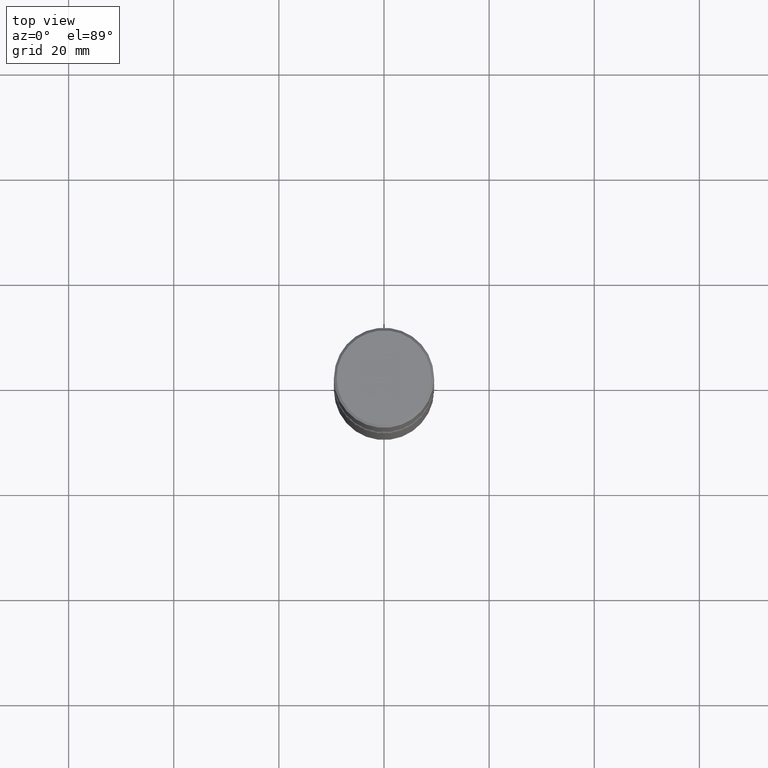
[diagram: clean part render]
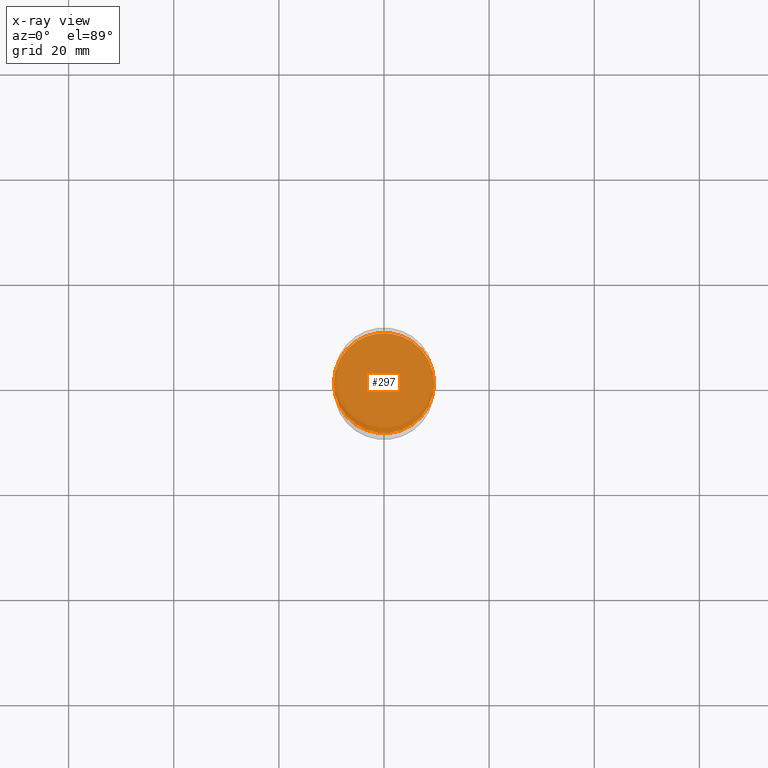
[diagram: x-ray — body ghosted, one internal face saturated and labeled with its STEP entity id]
A machine part, top view, then the same camera in x-ray: the body is ghosted and one INTERNAL B-rep face — a face not visible from any outside direction — is saturated and labeled: STEP entity #297.
In plain terms, the highlighted planar face has unit normal (0, -0, -1).
Its self-contained STEP definition (entity closure, byte-faithful):
#3 = CARTESIAN_POINT ( 'NONE',  ( 5.807988414689700538E-29, -8.292268179752471696E-15, -2.375000000000000000 ) ) ;
#11 = DIRECTION ( 'NONE',  ( 1.000000000000000000, -6.982962677686265922E-15, 0.000000000000000000 ) ) ;
#45 = VERTEX_POINT ( 'NONE', #455 ) ;
#50 = DIRECTION ( 'NONE',  ( -2.445468806185136597E-29, 3.491481338843145583E-15, 1.000000000000000000 ) ) ;
#79 = ORIENTED_EDGE ( 'NONE', *, *, #514, .T. ) ;
#82 = DIRECTION ( 'NONE',  ( -2.445468806185136597E-29, 3.491481338843145583E-15, 1.000000000000000000 ) ) ;
#85 = FACE_OUTER_BOUND ( 'NONE', #548, .T. ) ;
#89 = CARTESIAN_POINT ( 'NONE',  ( 5.807988414689700538E-29, -8.292268179752471696E-15, -2.375000000000000000 ) ) ;
#108 = AXIS2_PLACEMENT_3D ( 'NONE', #323, #82, #504 ) ;
#112 = VERTEX_POINT ( 'NONE', #511 ) ;
#190 = DIRECTION ( 'NONE',  ( -1.000000000000000000, 6.982962677686265922E-15, -4.876176775795935793E-29 ) ) ;
#258 = EDGE_CURVE ( 'NONE', #45, #112, #405, .T. ) ;
#260 = AXIS2_PLACEMENT_3D ( 'NONE', #89, #50, #11 ) ;
#297 = ADVANCED_FACE ( 'NONE', ( #85 ), #430, .F. ) ;
#323 = CARTESIAN_POINT ( 'NONE',  ( 5.807988414689700538E-29, -8.292268179752471696E-15, -2.375000000000000000 ) ) ;
#340 = DIRECTION ( 'NONE',  ( 2.438088387897960049E-29, -3.491481338843145188E-15, -1.000000000000000000 ) ) ;
#394 = CIRCLE ( 'NONE', #108, 0.3750000000000002776 ) ;
#405 = CIRCLE ( 'NONE', #260, 0.3750000000000002776 ) ;
#423 = AXIS2_PLACEMENT_3D ( 'NONE', #3, #340, #190 ) ;
#430 = PLANE ( 'NONE',  #423 ) ;
#455 = CARTESIAN_POINT ( 'NONE',  ( -0.3750000000000002776, -1.065546604858622349E-14, -2.375000000000000000 ) ) ;
#472 = ORIENTED_EDGE ( 'NONE', *, *, #258, .T. ) ;
#504 = DIRECTION ( 'NONE',  ( 1.000000000000000000, -6.982962677686265922E-15, 0.000000000000000000 ) ) ;
#511 = CARTESIAN_POINT ( 'NONE',  ( 0.3750000000000002776, -1.091087918388482329E-14, -2.375000000000000000 ) ) ;
#514 = EDGE_CURVE ( 'NONE', #112, #45, #394, .T. ) ;
#548 = EDGE_LOOP ( 'NONE', ( #79, #472 ) ) ;